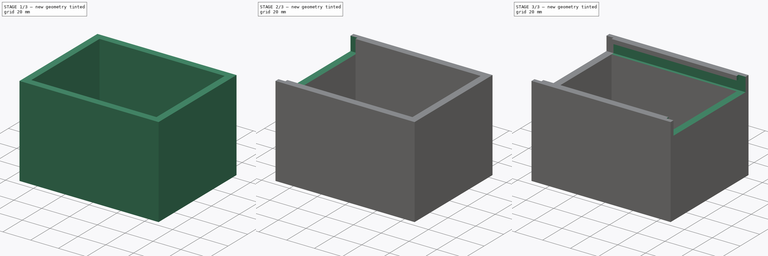
[diagram: build sequence overview — one tinted view per stage of 3, left to right]
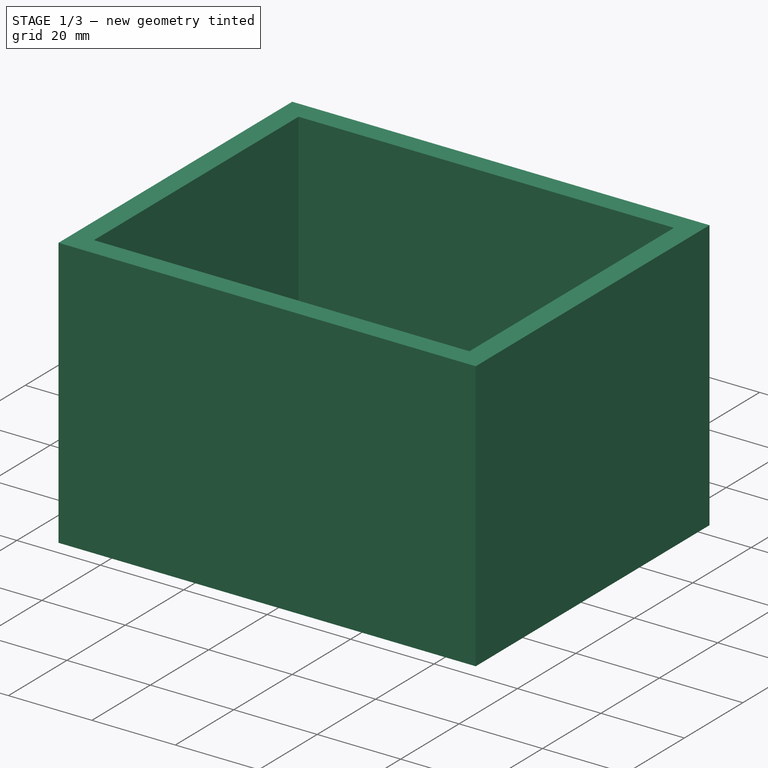
[diagram: stage 1 of 3 — iso view after this stage's code; geometry added in this stage tinted green]
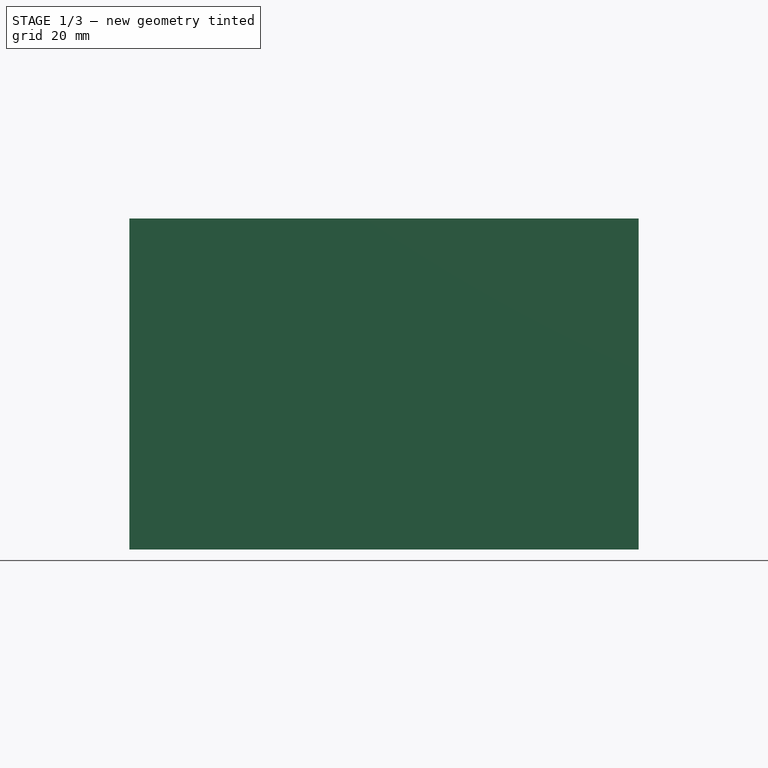
[diagram: stage 1 of 3 — front view after this stage's code; geometry added in this stage tinted green]
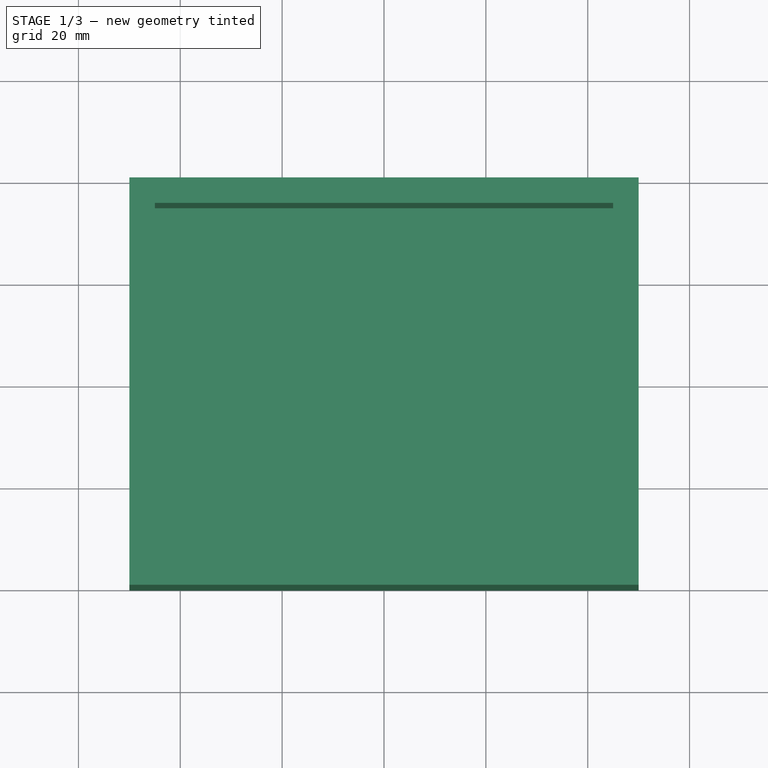
[diagram: stage 1 of 3 — top view after this stage's code; geometry added in this stage tinted green]
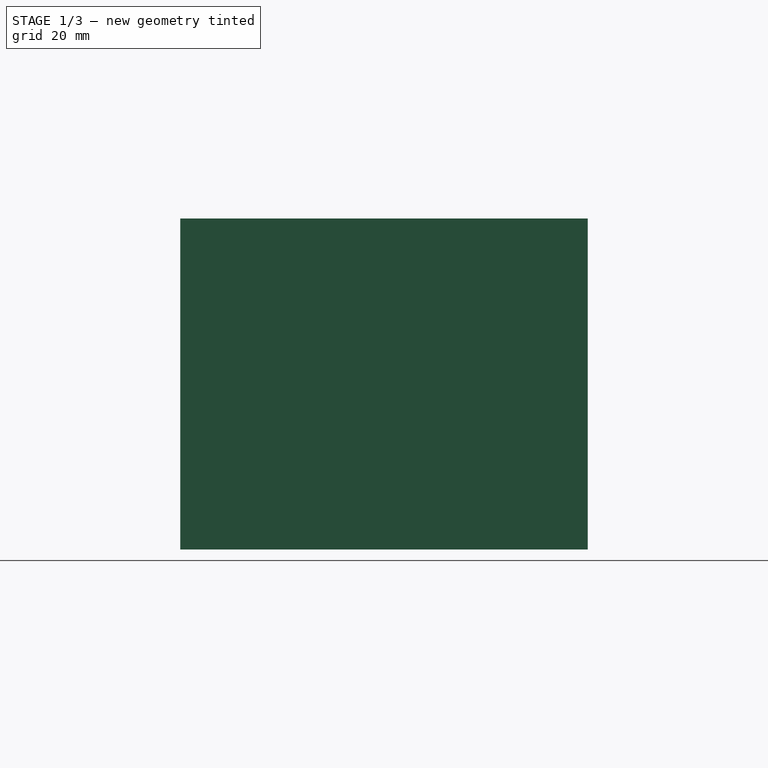
[diagram: stage 1 of 3 — right view after this stage's code; geometry added in this stage tinted green]
FCSTD DOCUMENT  (FreeCAD 0.19R24366 (Git))
Label: Modell_def
License: All rights reserved
LicenseURL: http://en.wikipedia.org/wiki/All_rights_reserved
objects: Sketcher::SketchObject×5, PartDesign::Pocket×5, PartDesign::Pad×1, PartDesign::Thickness×1, PartDesign::Body×1
note: 20 computed .brp shape members not serialized (recipe doc carries the construction recipe); baked Part::Feature solids carry a one-line shape summary decoded from their .brp

FEATURE [Sketcher::SketchObject] Sketch
  FullyConstrained = true
  MapMode = 5
  Support = -> [XY_Plane]
  sketch-geometry (4):
    g0: LineSegment StartX=-45 StartY=35 StartZ=0 EndX=45 EndY=35 EndZ=0
    g1: LineSegment StartX=45 StartY=35 StartZ=0 EndX=45 EndY=-35 EndZ=0
    g2: LineSegment StartX=45 StartY=-35 StartZ=0 EndX=-45 EndY=-35 EndZ=0
    g3: LineSegment StartX=-45 StartY=-35 StartZ=0 EndX=-45 EndY=35 EndZ=0
  constraints (11):
    c: Coincident(g0,g1)
    c: Coincident(g1,g2)
    c: Coincident(g2,g3)
    c: Coincident(g3,g0)
    c: Horizontal(g0)
    c: Horizontal(g2)
    c: Vertical(g1)
    c: Vertical(g3)
    c: Symmetric(g0,g2,g-1)
    c: DistanceX(g0,g0) = 90
    c: DistanceY(g2,g0) = 70
FEATURE [PartDesign::Pad] Pad
  Direction = (1,1,1)
  Length = 60
  Length2 = 100
  Profile = -> Sketch
  Type = 0
FEATURE [PartDesign::Thickness] Thickness
  Base = -> Pad [Face6]
  BaseFeature = -> Pad
  Intersection = false
  Join = 1
  Mode = 0
  SupportTransform = false
  Value = 5
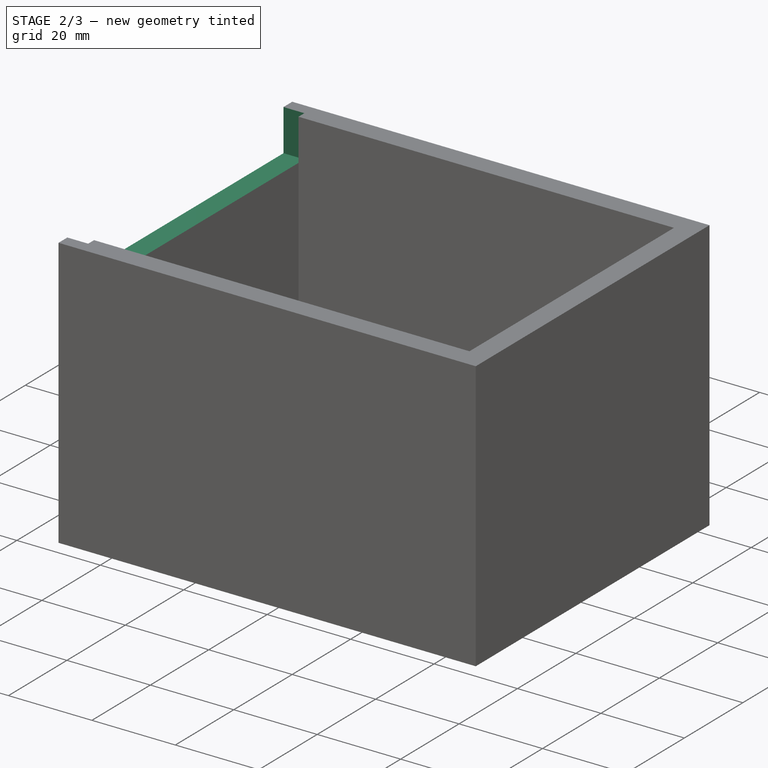
[diagram: stage 2 of 3 — iso view after this stage's code; geometry added in this stage tinted green]
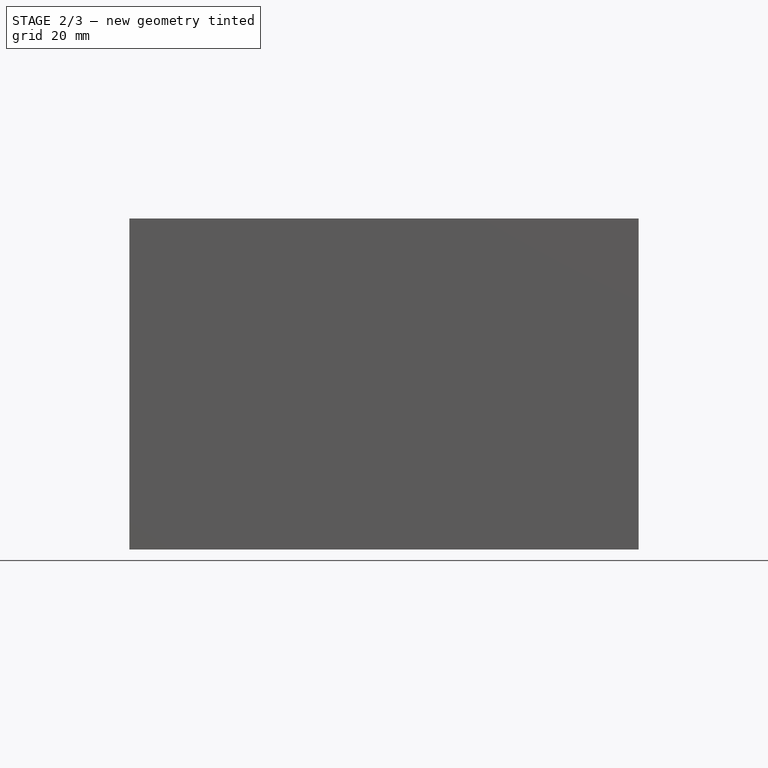
[diagram: stage 2 of 3 — front view after this stage's code; geometry added in this stage tinted green]
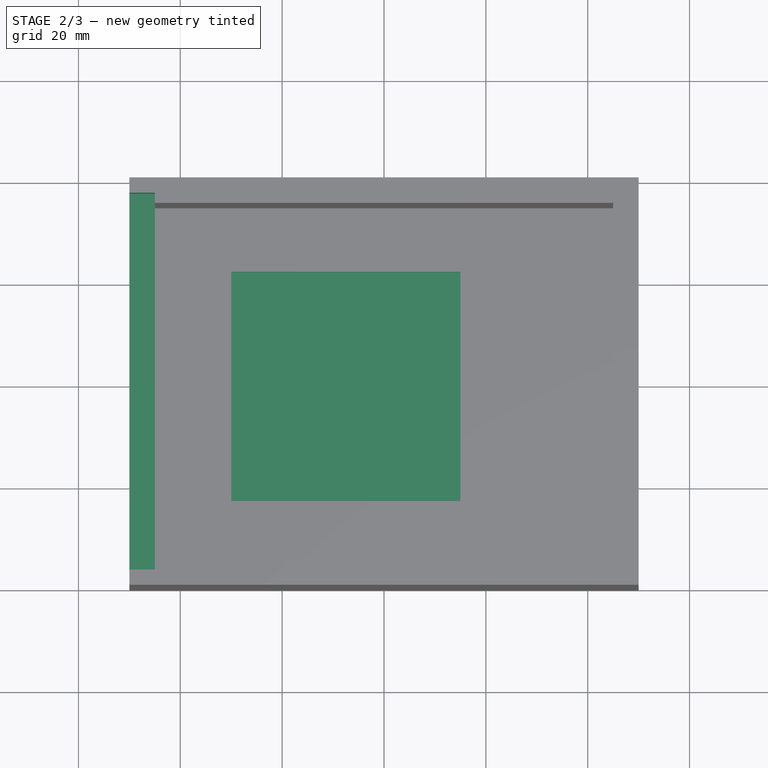
[diagram: stage 2 of 3 — top view after this stage's code; geometry added in this stage tinted green]
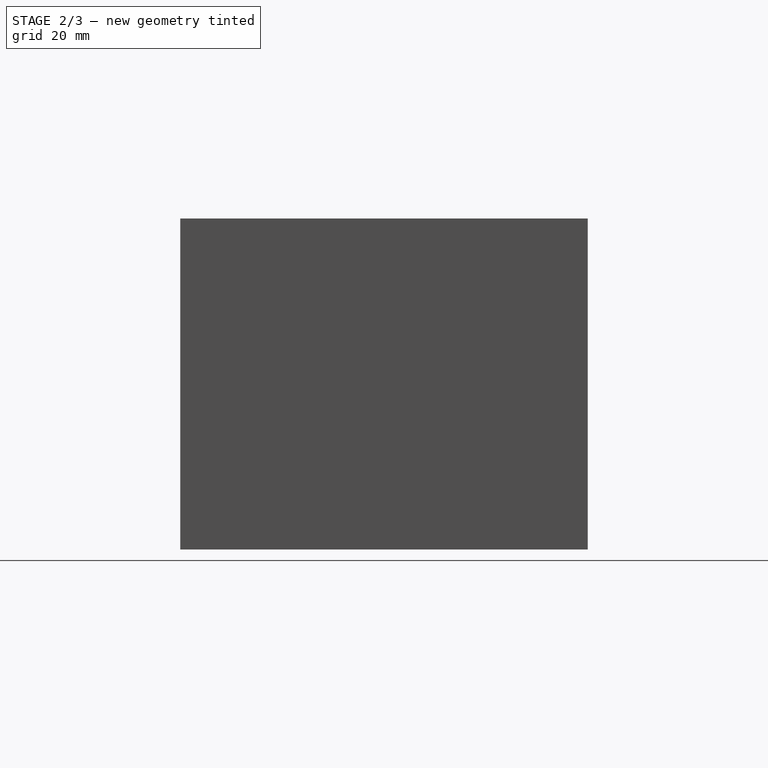
[diagram: stage 2 of 3 — right view after this stage's code; geometry added in this stage tinted green]
FEATURE [Sketcher::SketchObject] Sketch001
  FullyConstrained = true
  MapMode = 5
  Support = -> [Thickness]
  sketch-geometry (4):
    g0: LineSegment StartX=-30 StartY=22.5 StartZ=0 EndX=15 EndY=22.5 EndZ=0
    g1: LineSegment StartX=15 StartY=22.5 StartZ=0 EndX=15 EndY=-22.5 EndZ=0
    g2: LineSegment StartX=15 StartY=-22.5 StartZ=0 EndX=-30 EndY=-22.5 EndZ=0
    g3: LineSegment StartX=-30 StartY=-22.5 StartZ=0 EndX=-30 EndY=22.5 EndZ=0
  constraints (12):
    c: Coincident(g0,g1)
    c: Coincident(g1,g2)
    c: Coincident(g2,g3)
    c: Coincident(g3,g0)
    c: Horizontal(g0)
    c: Horizontal(g2)
    c: Vertical(g1)
    c: Vertical(g3)
    c: DistanceX(g0,g0) = 45
    c: DistanceY(g1,g0) = 45
    c: DistanceY(g-1,g0) = 22.5
    c: DistanceX(g-1,g0) = 15
FEATURE [PartDesign::Pocket] Pocket
  BaseFeature = -> Thickness
  Length = 3.5
  Length2 = 100
  Profile = -> Sketch001
  Type = 0
FEATURE [PartDesign::Pocket] Pocket001
  BaseFeature = -> Pocket
  Length = 3.5
  Length2 = 100
  Profile = -> Sketch001
  Type = 0
FEATURE [Sketcher::SketchObject] Sketch002
  FullyConstrained = false
  MapMode = 5
  Placement = pos=(-50,0,0) rot=(0.57735,-0.57735,-0.57735;2.0944rad)
  Support = -> [Pocket001]
  sketch-geometry (4):
    g0: LineSegment StartX=-37 StartY=50 StartZ=0 EndX=37 EndY=50 EndZ=0
    g1: LineSegment StartX=37 StartY=50 StartZ=0 EndX=37 EndY=60 EndZ=0
    g2: LineSegment StartX=37 StartY=60 StartZ=0 EndX=-37 EndY=60 EndZ=0
    g3: LineSegment StartX=-37 StartY=60 StartZ=0 EndX=-37 EndY=50 EndZ=0
  constraints (10):
    c: Coincident(g0,g1)
    c: Coincident(g1,g2)
    c: Coincident(g2,g3)
    c: Coincident(g3,g0)
    c: Horizontal(g0)
    c: Horizontal(g2)
    c: Vertical(g1)
    c: Vertical(g3)
    c: DistanceX(g0,g0) = 74
    c: DistanceX(g-1,g0) = 37
FEATURE [PartDesign::Pocket] Pocket002
  BaseFeature = -> Pocket001
  Length = 5
  Length2 = 100
  Profile = -> Sketch002
  Type = 0
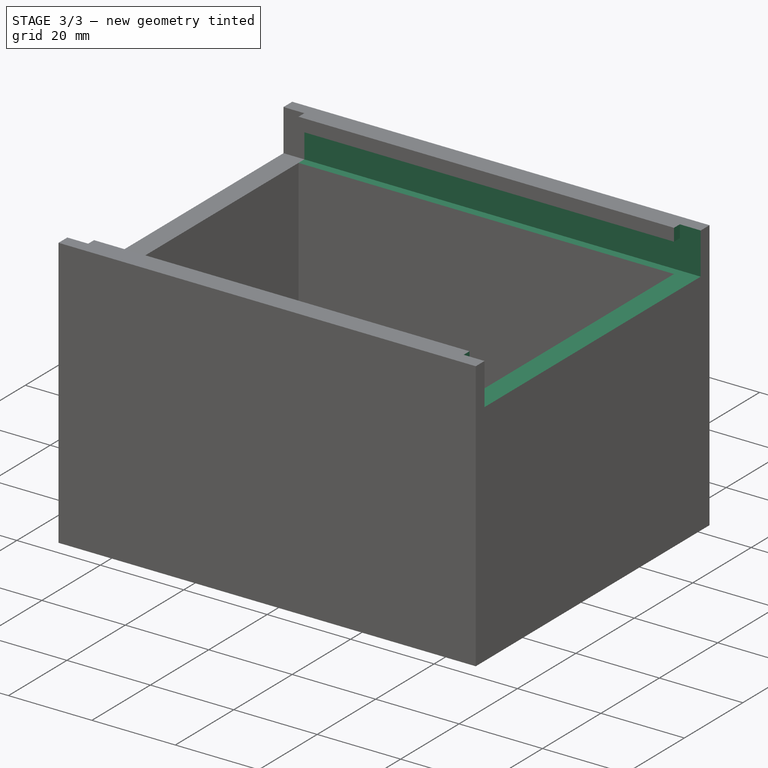
[diagram: stage 3 of 3 — iso view after this stage's code; geometry added in this stage tinted green]
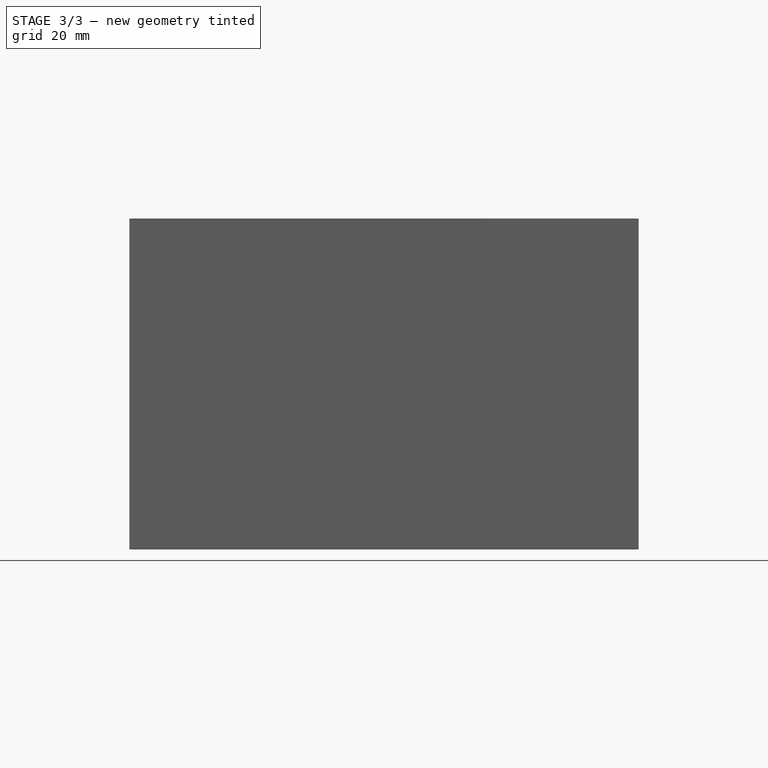
[diagram: stage 3 of 3 — front view after this stage's code; geometry added in this stage tinted green]
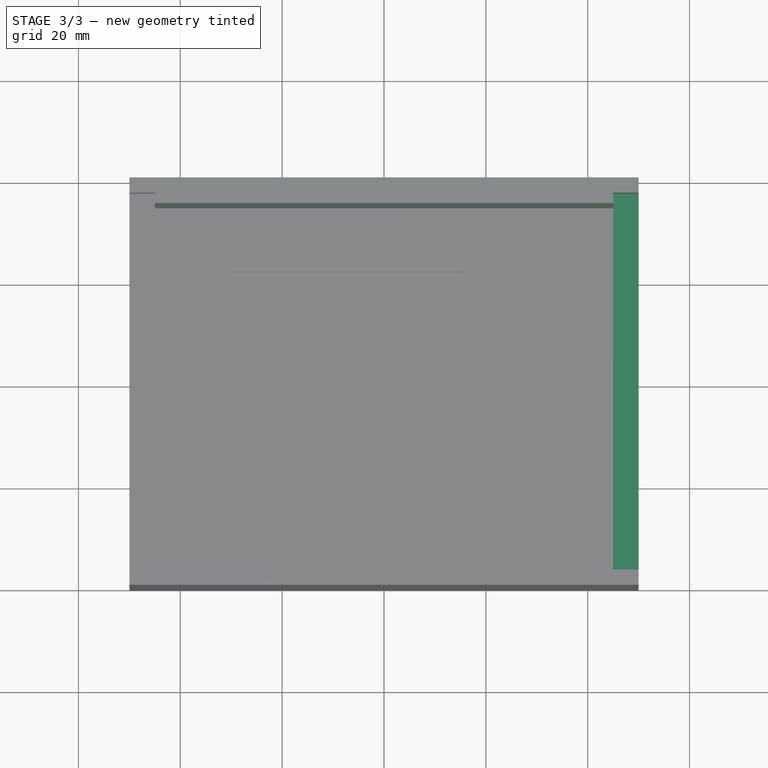
[diagram: stage 3 of 3 — top view after this stage's code; geometry added in this stage tinted green]
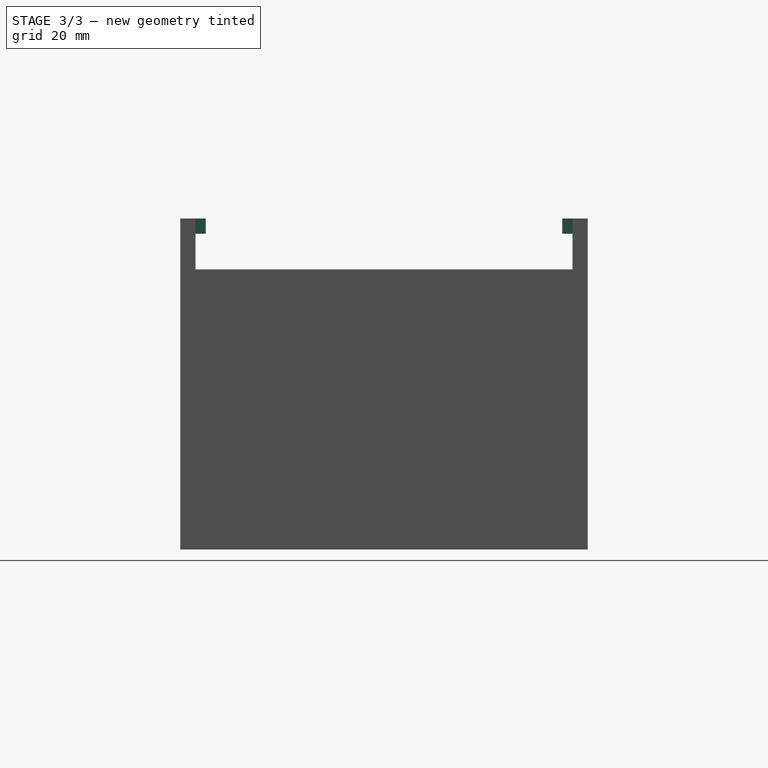
[diagram: stage 3 of 3 — right view after this stage's code; geometry added in this stage tinted green]
FEATURE [Sketcher::SketchObject] Sketch003
  FullyConstrained = true
  MapMode = 5
  Placement = pos=(50,0,0) rot=(0.57735,0.57735,0.57735;2.0944rad)
  Support = -> [Pocket002]
  sketch-geometry (4):
    g0: LineSegment StartX=-37 StartY=60 StartZ=0 EndX=37 EndY=60 EndZ=0
    g1: LineSegment StartX=37 StartY=60 StartZ=0 EndX=37 EndY=50 EndZ=0
    g2: LineSegment StartX=37 StartY=50 StartZ=0 EndX=-37 EndY=50 EndZ=0
    g3: LineSegment StartX=-37 StartY=50 StartZ=0 EndX=-37 EndY=60 EndZ=0
  constraints (12):
    c: Coincident(g0,g1)
    c: Coincident(g1,g2)
    c: Coincident(g2,g3)
    c: Coincident(g3,g0)
    c: Horizontal(g0)
    c: Horizontal(g2)
    c: Vertical(g1)
    c: Vertical(g3)
    c: DistanceX(g2,g1) = 74
    c: DistanceX(g-1,g1) = 37
    c: DistanceY(g-1,g1) = 50
    c: DistanceY(g1,g0) = 10
FEATURE [PartDesign::Pocket] Pocket003
  BaseFeature = -> Pocket002
  Length = 5
  Length2 = 100
  Profile = -> Sketch003
  Type = 0
FEATURE [Sketcher::SketchObject] Sketch004
  FullyConstrained = true
  MapMode = 5
  Placement = pos=(-45,0,0) rot=(0.57735,-0.57735,-0.57735;2.0944rad)
  Support = -> [Pocket003]
  sketch-geometry (4):
    g0: LineSegment StartX=-37 StartY=57 StartZ=0 EndX=37 EndY=57 EndZ=0
    g1: LineSegment StartX=37 StartY=57 StartZ=0 EndX=37 EndY=50 EndZ=0
    g2: LineSegment StartX=37 StartY=50 StartZ=0 EndX=-37 EndY=50 EndZ=0
    g3: LineSegment StartX=-37 StartY=50 StartZ=0 EndX=-37 EndY=57 EndZ=0
  constraints (12):
    c: Coincident(g0,g1)
    c: Coincident(g1,g2)
    c: Coincident(g2,g3)
    c: Coincident(g3,g0)
    c: Horizontal(g0)
    c: Horizontal(g2)
    c: Vertical(g1)
    c: Vertical(g3)
    c: DistanceY(g1,g0) = 7
    c: DistanceY(g-1,g1) = 50
    c: DistanceX(g0,g0) = 74
    c: DistanceX(g-1,g0) = 37
FEATURE [PartDesign::Pocket] Pocket004
  BaseFeature = -> Pocket003
  Length = 90
  Length2 = 100
  Profile = -> Sketch004
  Type = 0
FEATURE [PartDesign::Body] Body
  Group = -> [Sketch,Pad,Thickness,Sketch001,Pocket,Pocket001,Sketch002,Pocket002,Sketch003,Pocket003,Sketch004,Pocket004]
  Origin = -> Origin
  Tip = -> Pocket004
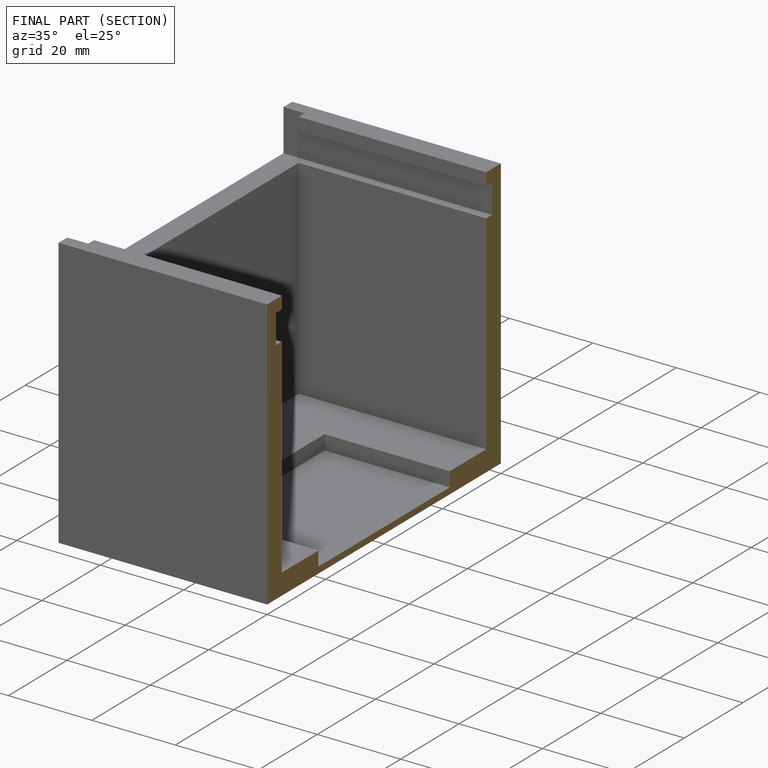
[diagram: finished part — half-section view (interior)]
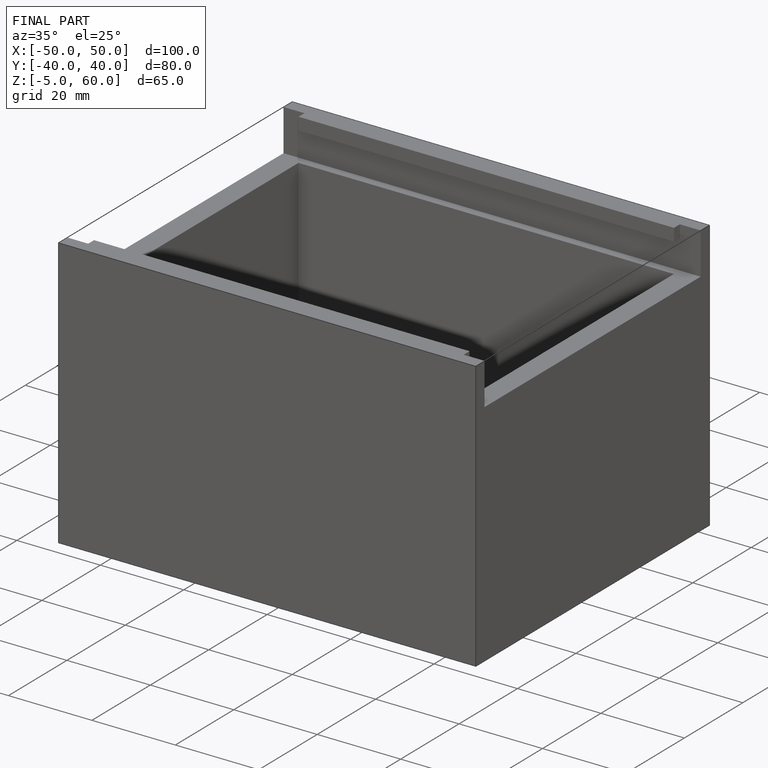
[diagram: finished part — iso view with bounding-box wireframe]
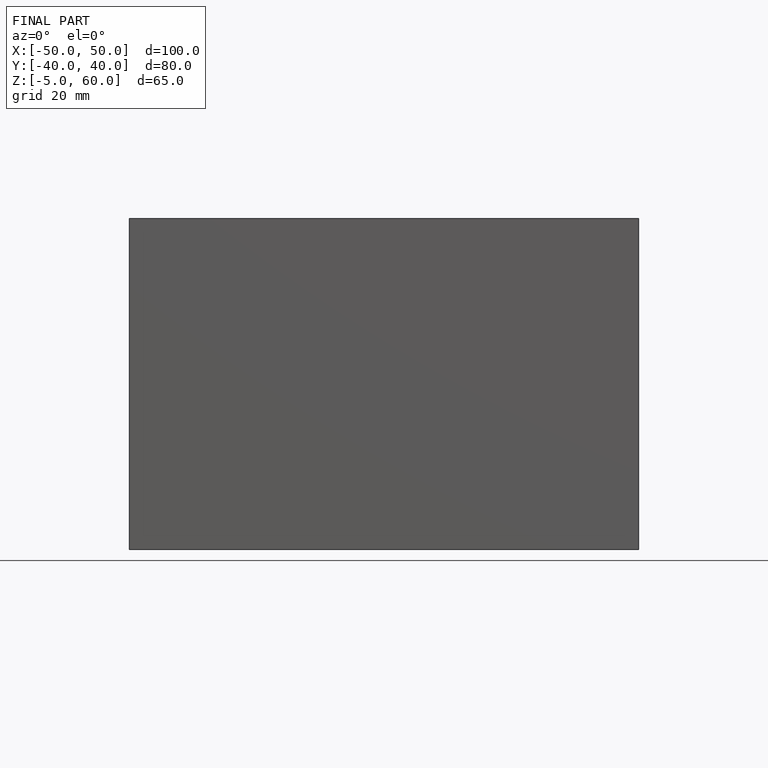
[diagram: finished part — front view with bounding-box wireframe]
